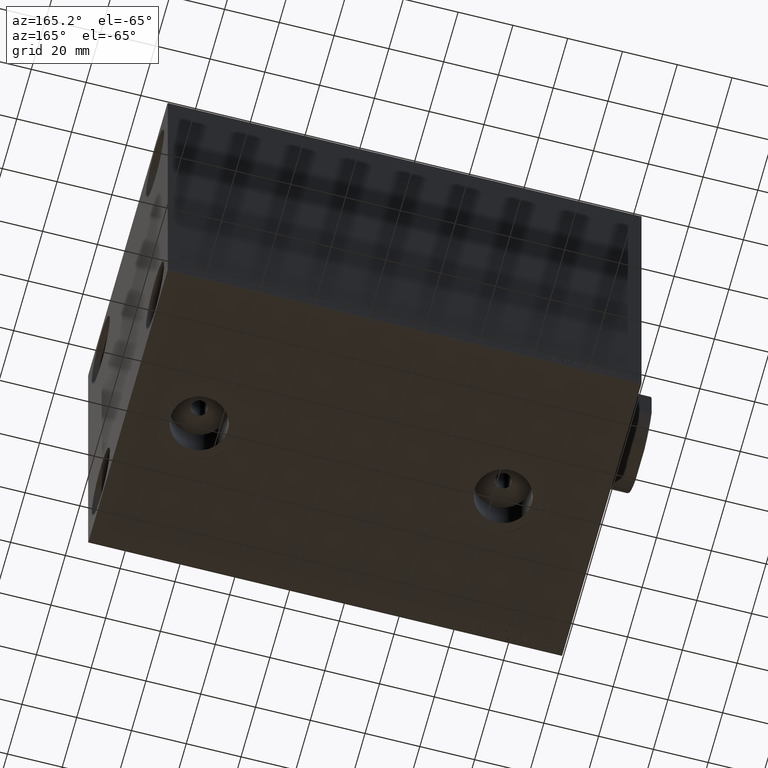
[diagram: clean part render]
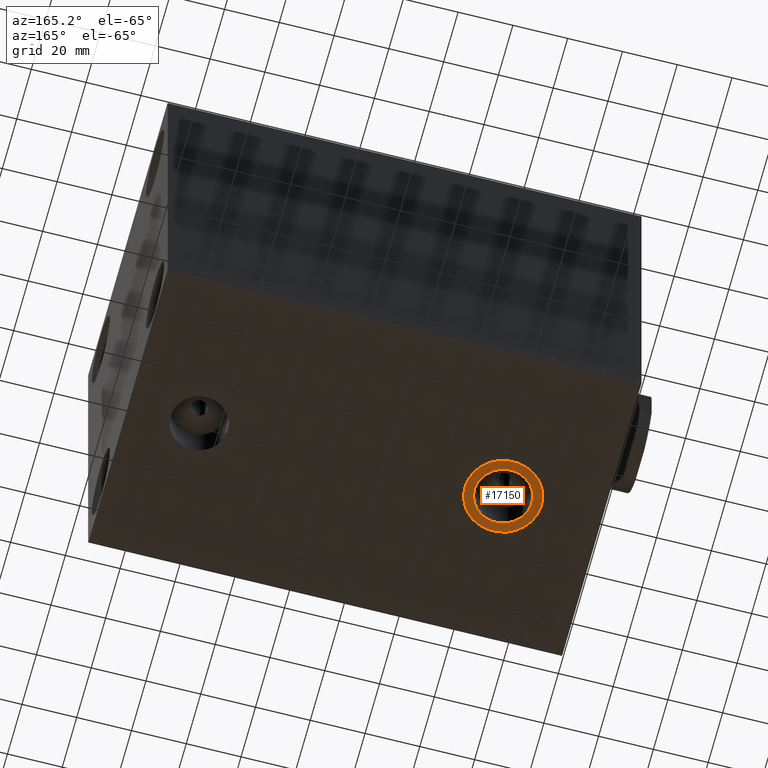
[diagram: same view with one face highlighted and labeled with its STEP entity id]
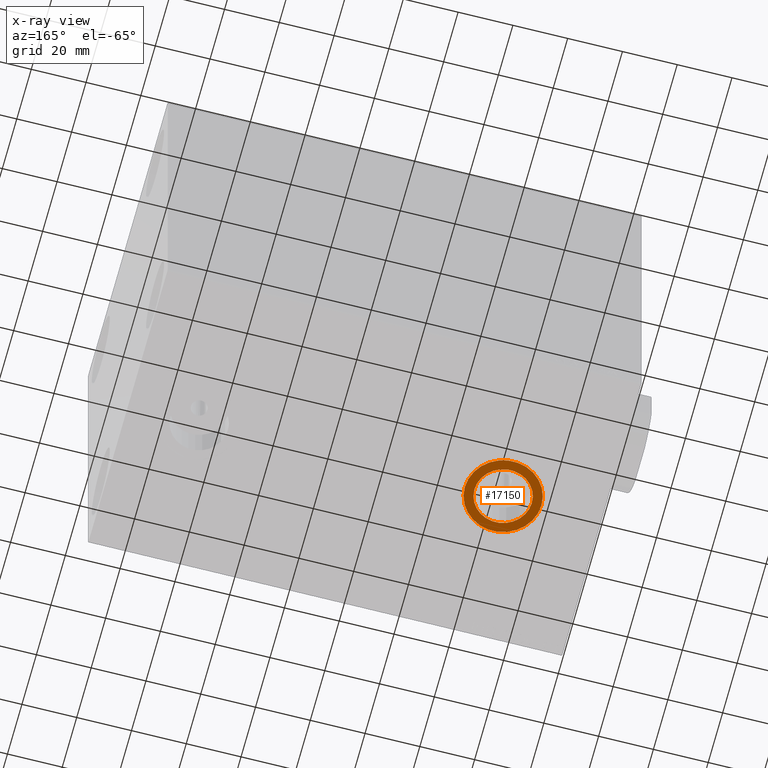
[diagram: x-ray of the same camera — body ghosted, the highlighted face saturated]
A machine part, auxiliary view. The second image highlights one B-rep face of the part: STEP entity #17150.
The next image is the same camera in x-ray: the body ghosted, the highlighted face saturated — about 0% of this face is hidden behind the body in this view.
In plain terms, the highlighted planar face has unit normal (0, 0, -1).
Its self-contained STEP definition (entity closure, byte-faithful):
#191 = VERTEX_POINT ( 'NONE', #5540 ) ;
#1447 = EDGE_CURVE ( 'NONE', #39694, #17366, #41528, .T. ) ;
#1718 = EDGE_LOOP ( 'NONE', ( #30917, #15538 ) ) ;
#1895 = DIRECTION ( 'NONE',  ( -1.000000000000000000, 0.000000000000000000, 0.000000000000000000 ) ) ;
#2834 = DIRECTION ( 'NONE',  ( 0.000000000000000000, 0.000000000000000000, -1.000000000000000000 ) ) ;
#5540 = CARTESIAN_POINT ( 'NONE',  ( 50.00000000000000000, 9.711264431617639696E-15, -69.90000000000001990 ) ) ;
#8751 = DIRECTION ( 'NONE',  ( -1.000000000000000000, 0.000000000000000000, -0.000000000000000000 ) ) ;
#9907 = CARTESIAN_POINT ( 'NONE',  ( 36.00000000000000000, 7.996758912811346044E-15, -69.90000000000001990 ) ) ;
#10011 = EDGE_CURVE ( 'NONE', #191, #16590, #38762, .T. ) ;
#10126 = DIRECTION ( 'NONE',  ( 0.000000000000000000, 0.000000000000000000, -1.000000000000000000 ) ) ;
#12097 = PLANE ( 'NONE',  #20428 ) ;
#12530 = DIRECTION ( 'NONE',  ( 0.000000000000000000, 0.000000000000000000, -1.000000000000000000 ) ) ;
#13049 = AXIS2_PLACEMENT_3D ( 'NONE', #21389, #41887, #24954 ) ;
#14206 = CIRCLE ( 'NONE', #22768, 13.99999999999999822 ) ;
#15538 = ORIENTED_EDGE ( 'NONE', *, *, #10011, .T. ) ;
#16421 = DIRECTION ( 'NONE',  ( -1.000000000000000000, 0.000000000000000000, 0.000000000000000000 ) ) ;
#16590 = VERTEX_POINT ( 'NONE', #42752 ) ;
#17150 = ADVANCED_FACE ( 'NONE', ( #19224, #25905 ), #12097, .T. ) ;
#17366 = VERTEX_POINT ( 'NONE', #33151 ) ;
#17457 = EDGE_CURVE ( 'NONE', #17366, #39694, #28981, .T. ) ;
#19224 = FACE_BOUND ( 'NONE', #19603, .T. ) ;
#19603 = EDGE_LOOP ( 'NONE', ( #31338, #40082 ) ) ;
#20428 = AXIS2_PLACEMENT_3D ( 'NONE', #32381, #12530, #8751 ) ;
#21389 = CARTESIAN_POINT ( 'NONE',  ( 36.00000000000000000, 7.996758912811346044E-15, -69.90000000000001990 ) ) ;
#22411 = DIRECTION ( 'NONE',  ( 0.000000000000000000, 0.000000000000000000, -1.000000000000000000 ) ) ;
#22768 = AXIS2_PLACEMENT_3D ( 'NONE', #9907, #10126, #43775 ) ;
#24954 = DIRECTION ( 'NONE',  ( -1.000000000000000000, 0.000000000000000000, 0.000000000000000000 ) ) ;
#25240 = AXIS2_PLACEMENT_3D ( 'NONE', #39133, #22411, #1895 ) ;
#25905 = FACE_OUTER_BOUND ( 'NONE', #1718, .T. ) ;
#27136 = CARTESIAN_POINT ( 'NONE',  ( 36.00000000000000000, 7.996758912811346044E-15, -69.90000000000001990 ) ) ;
#28981 = CIRCLE ( 'NONE', #38943, 10.48000000000000043 ) ;
#30917 = ORIENTED_EDGE ( 'NONE', *, *, #34374, .T. ) ;
#31338 = ORIENTED_EDGE ( 'NONE', *, *, #17457, .F. ) ;
#31825 = CARTESIAN_POINT ( 'NONE',  ( 46.47999999999999687, 9.280188758317773110E-15, -69.90000000000001990 ) ) ;
#32381 = CARTESIAN_POINT ( 'NONE',  ( 0.000000000000000000, 0.000000000000000000, -69.90000000000001990 ) ) ;
#33151 = CARTESIAN_POINT ( 'NONE',  ( 25.51999999999999602, 7.996758912811346044E-15, -69.90000000000001990 ) ) ;
#34374 = EDGE_CURVE ( 'NONE', #16590, #191, #14206, .T. ) ;
#38762 = CIRCLE ( 'NONE', #25240, 13.99999999999999822 ) ;
#38943 = AXIS2_PLACEMENT_3D ( 'NONE', #27136, #2834, #16421 ) ;
#39133 = CARTESIAN_POINT ( 'NONE',  ( 36.00000000000000000, 7.996758912811346044E-15, -69.90000000000001990 ) ) ;
#39694 = VERTEX_POINT ( 'NONE', #31825 ) ;
#40082 = ORIENTED_EDGE ( 'NONE', *, *, #1447, .F. ) ;
#41528 = CIRCLE ( 'NONE', #13049, 10.48000000000000043 ) ;
#41887 = DIRECTION ( 'NONE',  ( 0.000000000000000000, 0.000000000000000000, -1.000000000000000000 ) ) ;
#42752 = CARTESIAN_POINT ( 'NONE',  ( 22.00000000000000000, 7.996758912811346044E-15, -69.90000000000001990 ) ) ;
#43775 = DIRECTION ( 'NONE',  ( -1.000000000000000000, 0.000000000000000000, 0.000000000000000000 ) ) ;